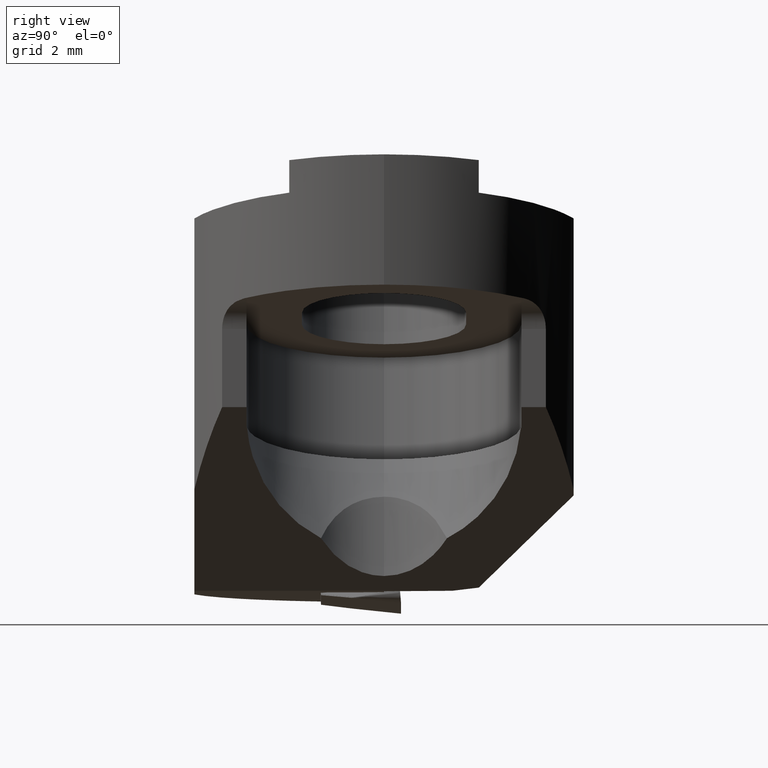
[diagram: clean part render]
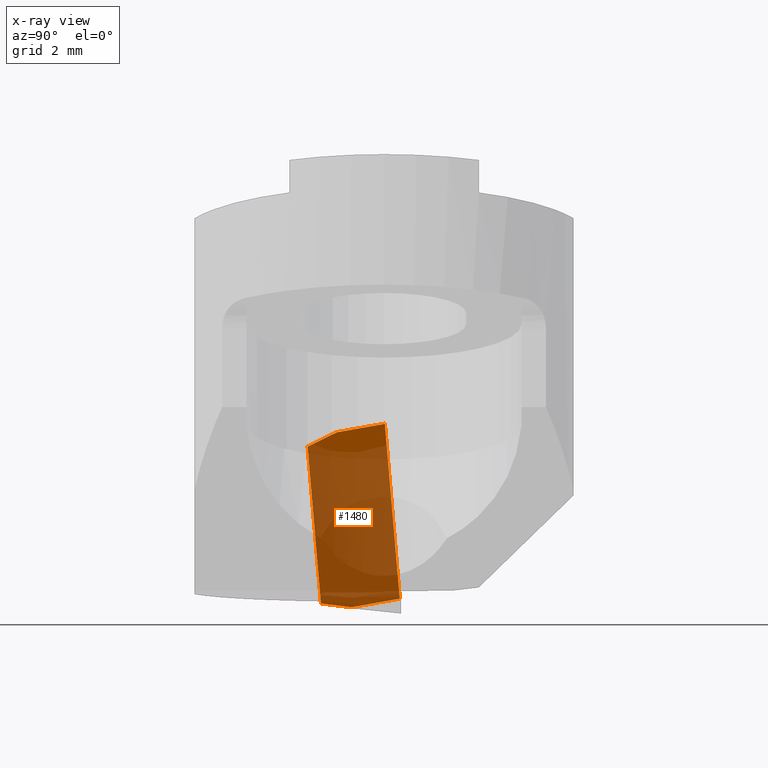
[diagram: x-ray — body ghosted, one internal face saturated and labeled with its STEP entity id]
A machine part, right view, then the same camera in x-ray: the body is ghosted and one INTERNAL B-rep face — a face not visible from any outside direction — is saturated and labeled: STEP entity #1480.
In plain terms, the highlighted planar face has unit normal (-0.8737, -0.2329, 0.4272).
Its self-contained STEP definition (entity closure, byte-faithful):
#1006=VERTEX_POINT('NONE',#2581);
#1018=EDGE_CURVE('NONE',#1114,#1006,#2593,.T.);
#1020=EDGE_CURVE('NONE',#1006,#1454,#2595,.T.);
#1066=VERTEX_POINT('NONE',#2646);
#1114=VERTEX_POINT('NONE',#2700);
#1454=VERTEX_POINT('NONE',#3077);
#1480=ADVANCED_FACE('NONE',(#3107),#3108,.T.);
#1548=VERTEX_POINT('NONE',#3183);
#1750=EDGE_CURVE('NONE',#1114,#1548,#3409,.T.);
#1954=VERTEX_POINT('NONE',#3631);
#1958=EDGE_CURVE('NONE',#1066,#1454,#3635,.T.);
#2058=EDGE_CURVE('NONE',#1548,#1954,#3745,.T.);
#2226=EDGE_CURVE('NONE',#1954,#1066,#3929,.T.);
#2581=CARTESIAN_POINT('',(-3.7728535501527,-1.497803171173,-8.80129367422835));
#2593=LINE('',#5073,#5074);
#2595=LINE('',#5077,#5078);
#2646=CARTESIAN_POINT('',(-6.87904554704752,0.497257708679056,-14.066584037181));
#2700=CARTESIAN_POINT('',(-3.74910022341685,-2.41838333053201,-9.25453414846347));
#3077=CARTESIAN_POINT('',(-4.0471655127021,0.0266166978417179,-8.53133765513132));
#3107=FACE_OUTER_BOUND('',#5801,.T.);
#3108=PLANE('',#5802);
#3183=CARTESIAN_POINT('',(-6.28843010165735,-1.99636235285991,-14.2179564512766));
#3409=LINE('',#6258,#6259);
#3631=CARTESIAN_POINT('',(-6.60473358449813,-1.02716216033566,-14.336540056278));
#3635=LINE('',#6556,#6557);
#3745=LINE('',#6730,#6731);
#3929=LINE('',#7016,#7017);
#5073=CARTESIAN_POINT('',(-3.80740198414848,-0.15884954892377,-8.14207028280782));
#5074=VECTOR('',#7456,1000.0);
#5077=CARTESIAN_POINT('',(-4.0471655127021,0.0266166978417179,-8.53133765513132));
#5078=VECTOR('',#7457,1000.0);
#5801=EDGE_LOOP('',(#8098,#8099,#8100,#8101,#8102,#8103));
#5802=AXIS2_PLACEMENT_3D('',#8104,#8105,#8106);
#6258=CARTESIAN_POINT('',(-3.60282514536439,-2.44269334711463,-8.96862210884522));
#6259=VECTOR('',#8477,1000.0);
#6556=CARTESIAN_POINT('',(-4.0471655127021,0.0266166978417179,-8.53133765513132));
#6557=VECTOR('',#8717,1000.0);
#6730=CARTESIAN_POINT('',(-6.46179942357474,-1.46513336141463,-14.2829533934695));
#6731=VECTOR('',#8840,1000.0);
#7016=CARTESIAN_POINT('',(-6.87904554704752,0.497257708679056,-14.066584037181));
#7017=VECTOR('',#9067,1000.0);
#7456=DIRECTION('',(-0.0231427854071319,0.896918116566449,0.441590651688295));
#7457=DIRECTION('',(-0.174470633312726,0.969576745795808,0.171700122665849));
#8098=ORIENTED_EDGE('',*,*,#1750,.F.);
#8099=ORIENTED_EDGE('',*,*,#1018,.T.);
#8100=ORIENTED_EDGE('',*,*,#1020,.T.);
#8101=ORIENTED_EDGE('',*,*,#1958,.F.);
#8102=ORIENTED_EDGE('',*,*,#2226,.F.);
#8103=ORIENTED_EDGE('',*,*,#2058,.F.);
#8104=CARTESIAN_POINT('',(-4.0471655127021,0.0266166978417179,-8.53133765513132));
#8105=DIRECTION('',(-0.873668125055442,-0.232860132679662,0.427176972542433));
#8106=DIRECTION('',(-0.25754077103278,0.966267432575393,2.57842878746495E-017));
#8477=DIRECTION('',(-0.454162972261681,0.0754790873051705,-0.887715552418686));
#8717=DIRECTION('',(0.454162972261681,-0.0754790873051705,0.887715552418686));
#8840=DIRECTION('',(-0.308173406963817,0.944288449427334,-0.115535602817641));
#9067=DIRECTION('',(-0.174470633312726,0.969576745795808,0.171700122665848));